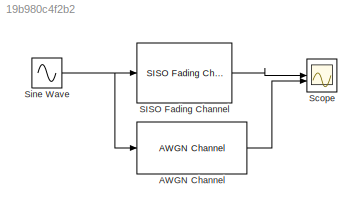
MODEL slx_19b980c4f2b2
KIND model
CONFIG AbsTol = auto
CONFIG EnableMultiTasking = off
CONFIG FixedStep = auto
CONFIG MaxStep = auto
CONFIG MinStep = auto
CONFIG RelTol = 1e-3
CONFIG SampleTimeConstraint = Unconstrained
CONFIG SolverName = VariableStepAuto
CONFIG StartTime = 0.0
CONFIG StopTime = 10.0
BLOCK [Reference] AWGN Channel  REF=commchan3/AWGN
Channel
  SourceBlock = commchan3/AWGN\nChannel
  SourceType = AWGN Channel
BLOCK [Reference] SISO Fading Channel  REF=commchan3/SISO Fading Channel
  SourceBlock = commchan3/SISO Fading Channel
  SourceType = SISO Fading Channel
BLOCK [Scope] Scope
  Floating = off
  NumInputPorts = 2
  ScopeSpecificationString = Simulink.scopes.TimeScopeBlockCfg('CurrentConfiguration', extmgr.ConfigurationSet(extmgr.Configuration('Core','General UI',true),extmgr.Configuration('Core','Source UI',true),extmgr.Configuration('Sources','WiredSimulink',true),extmgr.Configuration('Visuals','Time Domain',true,'SerializedDisplays',{struct('MinYLimReal','-1.65678','MaxYLimReal','1.61053','YLabelReal','','MinYLimMag','0.00000','MaxY...<+2022ch>
BLOCK [Sin] Sine Wave
  SampleTime = 0.01
LINE AWGN Channel:1 -> Scope:2
LINE SISO Fading Channel:1 -> Scope:1
NET Sine Wave:1 -> AWGN Channel:1, SISO Fading Channel:1
note: NET lines group one-source signal fan-out (src -> all destinations, sorted); 1:1 wires keep LINE
